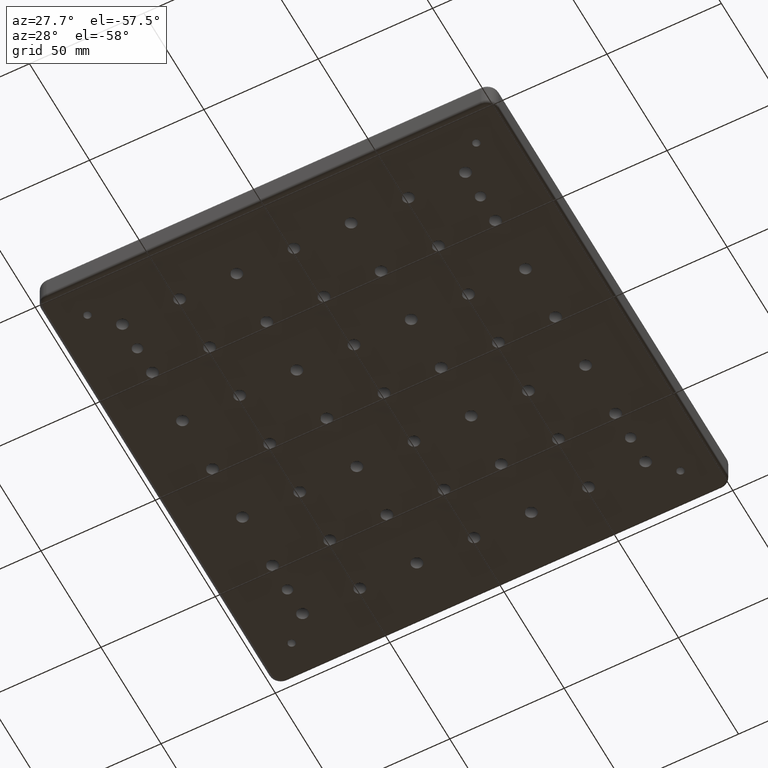
[diagram: clean part render]
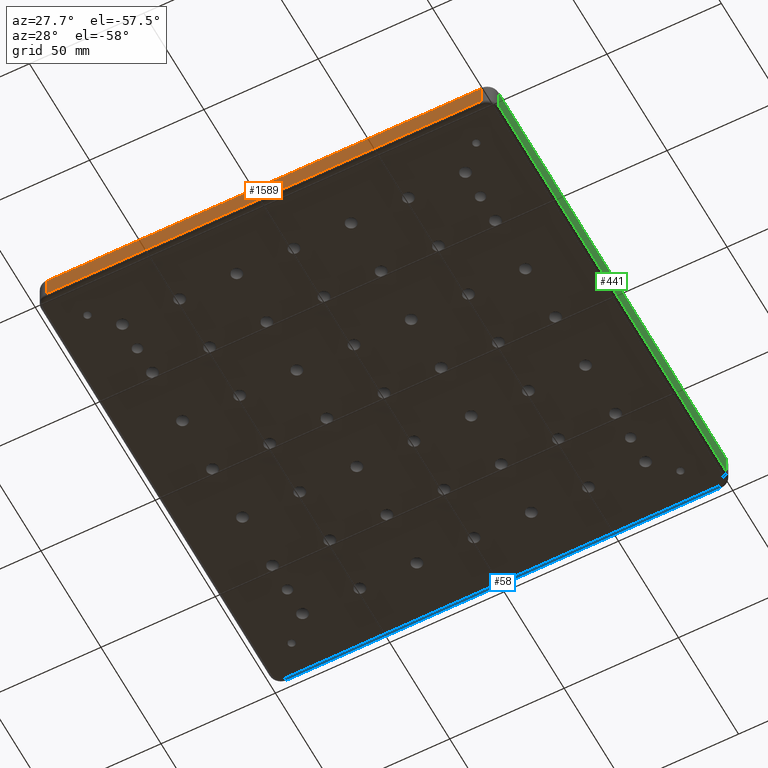
[diagram: same view with three faces highlighted in distinct colors, each labeled with its STEP entity id]
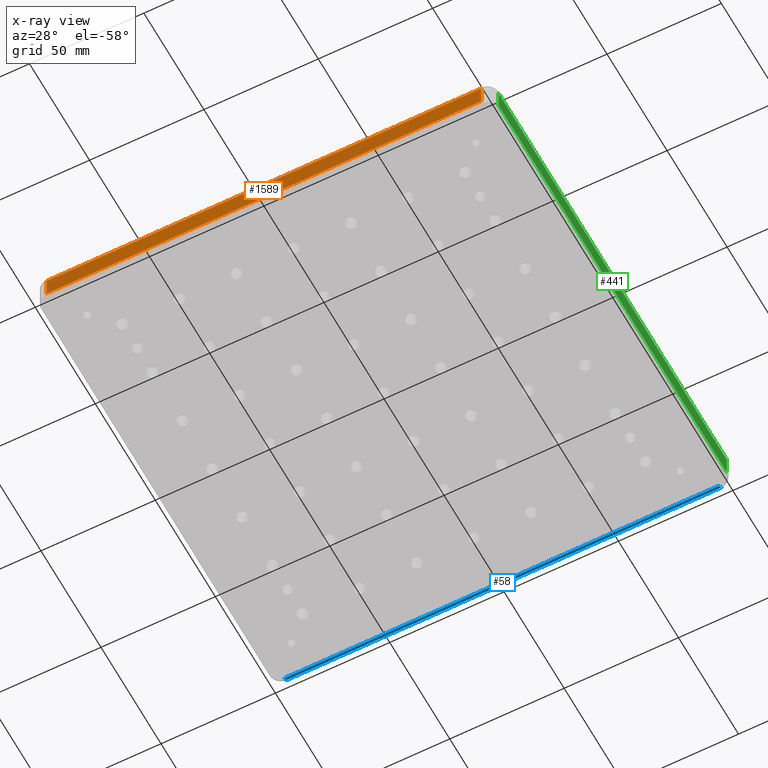
[diagram: x-ray of the same camera — body ghosted, the three highlighted faces saturated]
A machine part, auxiliary view with three faces highlighted in distinct colors.
The next image is the same camera in x-ray (body ghosted, the three faces saturated) — at least one of them is partly hidden behind the body in this view.
Their STEP definitions:

[orange] entity #1589 — the highlighted planar face has unit normal (-0, -1, 0).
#118 = AXIS2_PLACEMENT_3D ( 'NONE', #1741, #4043, #3664 ) ;
#560 = FACE_OUTER_BOUND ( 'NONE', #1085, .T. ) ;
#627 = CARTESIAN_POINT ( 'NONE',  ( -95.00000000000011400, -99.99999999999998600, -13.00000000000000000 ) ) ;
#709 = EDGE_CURVE ( 'NONE', #3378, #1156, #3849, .T. ) ;
#942 = DIRECTION ( 'NONE',  ( -1.000000000000000000, 1.460819769243625700E-016, -0.0000000000000000000 ) ) ;
#974 = CARTESIAN_POINT ( 'NONE',  ( -95.00000000000011400, -100.0000000000000000, -2.000000000000000000 ) ) ;
#1020 = VECTOR ( 'NONE', #2306, 1000.000000000000000 ) ;
#1085 = EDGE_LOOP ( 'NONE', ( #2422, #1783, #2228, #2787 ) ) ;
#1095 = EDGE_CURVE ( 'NONE', #4159, #2009, #1336, .T. ) ;
#1156 = VERTEX_POINT ( 'NONE', #3901 ) ;
#1221 = VECTOR ( 'NONE', #942, 1000.000000000000000 ) ;
#1336 = LINE ( 'NONE', #627, #1020 ) ;
#1369 = VECTOR ( 'NONE', #2543, 1000.000000000000000 ) ;
#1589 = ADVANCED_FACE ( 'NONE', ( #560 ), #4179, .T. ) ;
#1741 = CARTESIAN_POINT ( 'NONE',  ( -95.00000000000011400, -100.0000000000000000, -13.00000000000000000 ) ) ;
#1744 = CARTESIAN_POINT ( 'NONE',  ( -95.00000000000011400, -99.99999999999998600, -11.00000000000000000 ) ) ;
#1783 = ORIENTED_EDGE ( 'NONE', *, *, #2534, .T. ) ;
#2001 = VECTOR ( 'NONE', #5213, 1000.000000000000000 ) ;
#2009 = VERTEX_POINT ( 'NONE', #3250 ) ;
#2064 = CARTESIAN_POINT ( 'NONE',  ( -95.00000000000011400, -100.0000000000000000, -11.00000000000000000 ) ) ;
#2228 = ORIENTED_EDGE ( 'NONE', *, *, #709, .T. ) ;
#2306 = DIRECTION ( 'NONE',  ( 0.0000000000000000000, 0.0000000000000000000, 1.000000000000000000 ) ) ;
#2422 = ORIENTED_EDGE ( 'NONE', *, *, #1095, .F. ) ;
#2534 = EDGE_CURVE ( 'NONE', #4159, #3378, #3561, .T. ) ;
#2543 = DIRECTION ( 'NONE',  ( 1.000000000000000000, -1.460819769243625700E-016, 0.0000000000000000000 ) ) ;
#2787 = ORIENTED_EDGE ( 'NONE', *, *, #4674, .T. ) ;
#3250 = CARTESIAN_POINT ( 'NONE',  ( -95.00000000000011400, -99.99999999999998600, -2.000000000000001800 ) ) ;
#3269 = CARTESIAN_POINT ( 'NONE',  ( 95.00000000000011400, -100.0000000000000300, -11.00000000000000000 ) ) ;
#3378 = VERTEX_POINT ( 'NONE', #3269 ) ;
#3401 = LINE ( 'NONE', #974, #1221 ) ;
#3561 = LINE ( 'NONE', #2064, #1369 ) ;
#3664 = DIRECTION ( 'NONE',  ( 1.000000000000000000, -1.460819769243625700E-016, 0.0000000000000000000 ) ) ;
#3849 = LINE ( 'NONE', #4722, #2001 ) ;
#3901 = CARTESIAN_POINT ( 'NONE',  ( 95.00000000000011400, -100.0000000000000300, -2.000000000000003600 ) ) ;
#4043 = DIRECTION ( 'NONE',  ( -1.460819769243625700E-016, -1.000000000000000000, 0.0000000000000000000 ) ) ;
#4159 = VERTEX_POINT ( 'NONE', #1744 ) ;
#4179 = PLANE ( 'NONE',  #118 ) ;
#4674 = EDGE_CURVE ( 'NONE', #1156, #2009, #3401, .T. ) ;
#4722 = CARTESIAN_POINT ( 'NONE',  ( 95.00000000000011400, -100.0000000000000300, -13.00000000000000000 ) ) ;
#5213 = DIRECTION ( 'NONE',  ( 0.0000000000000000000, 0.0000000000000000000, 1.000000000000000000 ) ) ;

[blue] entity #58 — the highlighted cylindrical surface (edge-blend (fillet) strip) has radius 2 mm, axis along (-1, -0, 0).
#23 = AXIS2_PLACEMENT_3D ( 'NONE', #3622, #1941, #2014 ) ;
#58 = ADVANCED_FACE ( 'NONE', ( #3160 ), #2082, .T. ) ;
#523 = EDGE_CURVE ( 'NONE', #671, #995, #851, .T. ) ;
#671 = VERTEX_POINT ( 'NONE', #4684 ) ;
#766 = CARTESIAN_POINT ( 'NONE',  ( -95.00000000000011400, 100.0000000000000000, -11.00000000000000000 ) ) ;
#851 = CIRCLE ( 'NONE', #4746, 2.000000000000000000 ) ;
#875 = EDGE_LOOP ( 'NONE', ( #5304, #1277, #4281, #1580 ) ) ;
#995 = VERTEX_POINT ( 'NONE', #3763 ) ;
#1044 = CARTESIAN_POINT ( 'NONE',  ( 95.00000000000011400, 98.00000000000002800, -11.00000000000000000 ) ) ;
#1136 = CIRCLE ( 'NONE', #2550, 2.000000000000000000 ) ;
#1137 = CARTESIAN_POINT ( 'NONE',  ( -95.00000000000011400, 100.0000000000000000, -11.00000000000000000 ) ) ;
#1164 = LINE ( 'NONE', #766, #1943 ) ;
#1277 = ORIENTED_EDGE ( 'NONE', *, *, #3897, .F. ) ;
#1289 = DIRECTION ( 'NONE',  ( 1.000000000000000000, 1.460819769243625700E-016, -0.0000000000000000000 ) ) ;
#1453 = DIRECTION ( 'NONE',  ( 0.0000000000000000000, 0.0000000000000000000, -1.000000000000000000 ) ) ;
#1477 = EDGE_CURVE ( 'NONE', #3859, #3254, #1136, .T. ) ;
#1580 = ORIENTED_EDGE ( 'NONE', *, *, #3464, .F. ) ;
#1941 = DIRECTION ( 'NONE',  ( -1.000000000000000000, -1.460819769243625700E-016, 0.0000000000000000000 ) ) ;
#1943 = VECTOR ( 'NONE', #2061, 1000.000000000000000 ) ;
#2014 = DIRECTION ( 'NONE',  ( 0.0000000000000000000, -1.000000000000000000, 0.0000000000000000000 ) ) ;
#2061 = DIRECTION ( 'NONE',  ( -1.000000000000000000, -1.460819769243625700E-016, 0.0000000000000000000 ) ) ;
#2082 = CYLINDRICAL_SURFACE ( 'NONE', #23, 2.000000000000001800 ) ;
#2201 = LINE ( 'NONE', #2559, #2789 ) ;
#2329 = CARTESIAN_POINT ( 'NONE',  ( -95.00000000000011400, 98.00000000000000000, -13.00000000000000000 ) ) ;
#2550 = AXIS2_PLACEMENT_3D ( 'NONE', #5199, #4353, #3572 ) ;
#2559 = CARTESIAN_POINT ( 'NONE',  ( -95.00000000000011400, 98.00000000000000000, -13.00000000000000000 ) ) ;
#2789 = VECTOR ( 'NONE', #1289, 1000.000000000000000 ) ;
#3160 = FACE_OUTER_BOUND ( 'NONE', #875, .T. ) ;
#3254 = VERTEX_POINT ( 'NONE', #1137 ) ;
#3464 = EDGE_CURVE ( 'NONE', #3859, #671, #2201, .T. ) ;
#3572 = DIRECTION ( 'NONE',  ( 0.0000000000000000000, 0.0000000000000000000, -1.000000000000000000 ) ) ;
#3622 = CARTESIAN_POINT ( 'NONE',  ( -95.00000000000011400, 98.00000000000000000, -11.00000000000000000 ) ) ;
#3763 = CARTESIAN_POINT ( 'NONE',  ( 95.00000000000011400, 100.0000000000000100, -11.00000000000000000 ) ) ;
#3859 = VERTEX_POINT ( 'NONE', #2329 ) ;
#3897 = EDGE_CURVE ( 'NONE', #995, #3254, #1164, .T. ) ;
#3912 = DIRECTION ( 'NONE',  ( 1.000000000000000000, -0.0000000000000000000, 0.0000000000000000000 ) ) ;
#4281 = ORIENTED_EDGE ( 'NONE', *, *, #523, .F. ) ;
#4353 = DIRECTION ( 'NONE',  ( 1.000000000000000000, -0.0000000000000000000, 0.0000000000000000000 ) ) ;
#4684 = CARTESIAN_POINT ( 'NONE',  ( 95.00000000000011400, 98.00000000000002800, -13.00000000000000000 ) ) ;
#4746 = AXIS2_PLACEMENT_3D ( 'NONE', #1044, #3912, #1453 ) ;
#5199 = CARTESIAN_POINT ( 'NONE',  ( -95.00000000000011400, 97.99999999999998600, -11.00000000000000000 ) ) ;
#5304 = ORIENTED_EDGE ( 'NONE', *, *, #1477, .T. ) ;

[green] entity #441 — the highlighted planar face has unit normal (1, 0, -0).
#47 = CARTESIAN_POINT ( 'NONE',  ( 100.0000000000000700, -95.00000000000008500, -2.000000000000001800 ) ) ;
#149 = CARTESIAN_POINT ( 'NONE',  ( 99.99999999999997200, 95.00000000000014200, -11.00000000000000000 ) ) ;
#257 = DIRECTION ( 'NONE',  ( -2.921639538487251300E-016, 1.000000000000000000, 0.0000000000000000000 ) ) ;
#436 = LINE ( 'NONE', #4426, #4517 ) ;
#441 = ADVANCED_FACE ( 'NONE', ( #1037 ), #3159, .T. ) ;
#608 = DIRECTION ( 'NONE',  ( 0.0000000000000000000, 0.0000000000000000000, 1.000000000000000000 ) ) ;
#743 = CARTESIAN_POINT ( 'NONE',  ( 100.0000000000000300, -95.00000000000008500, -2.000000000000000000 ) ) ;
#937 = LINE ( 'NONE', #743, #1505 ) ;
#1037 = FACE_OUTER_BOUND ( 'NONE', #3261, .T. ) ;
#1072 = AXIS2_PLACEMENT_3D ( 'NONE', #2771, #4733, #257 ) ;
#1089 = VERTEX_POINT ( 'NONE', #149 ) ;
#1117 = VERTEX_POINT ( 'NONE', #4731 ) ;
#1505 = VECTOR ( 'NONE', #3601, 1000.000000000000000 ) ;
#1543 = EDGE_CURVE ( 'NONE', #1089, #4768, #436, .T. ) ;
#1928 = EDGE_CURVE ( 'NONE', #4768, #2555, #937, .T. ) ;
#1997 = DIRECTION ( 'NONE',  ( 0.0000000000000000000, 0.0000000000000000000, 1.000000000000000000 ) ) ;
#2121 = LINE ( 'NONE', #3350, #5191 ) ;
#2555 = VERTEX_POINT ( 'NONE', #47 ) ;
#2771 = CARTESIAN_POINT ( 'NONE',  ( 100.0000000000000300, -95.00000000000008500, -13.00000000000000000 ) ) ;
#3080 = LINE ( 'NONE', #3518, #5138 ) ;
#3159 = PLANE ( 'NONE',  #1072 ) ;
#3261 = EDGE_LOOP ( 'NONE', ( #4226, #4078, #3545, #3547 ) ) ;
#3331 = DIRECTION ( 'NONE',  ( -2.921639538487251300E-016, 1.000000000000000000, 0.0000000000000000000 ) ) ;
#3350 = CARTESIAN_POINT ( 'NONE',  ( 100.0000000000000300, -95.00000000000008500, -11.00000000000000000 ) ) ;
#3518 = CARTESIAN_POINT ( 'NONE',  ( 100.0000000000000700, -95.00000000000008500, -13.00000000000000000 ) ) ;
#3545 = ORIENTED_EDGE ( 'NONE', *, *, #1543, .T. ) ;
#3547 = ORIENTED_EDGE ( 'NONE', *, *, #1928, .T. ) ;
#3601 = DIRECTION ( 'NONE',  ( 2.921639538487251300E-016, -1.000000000000000000, -0.0000000000000000000 ) ) ;
#4078 = ORIENTED_EDGE ( 'NONE', *, *, #5151, .T. ) ;
#4226 = ORIENTED_EDGE ( 'NONE', *, *, #4783, .F. ) ;
#4426 = CARTESIAN_POINT ( 'NONE',  ( 99.99999999999997200, 95.00000000000014200, -13.00000000000000000 ) ) ;
#4517 = VECTOR ( 'NONE', #1997, 1000.000000000000000 ) ;
#4731 = CARTESIAN_POINT ( 'NONE',  ( 100.0000000000000700, -95.00000000000008500, -11.00000000000000000 ) ) ;
#4733 = DIRECTION ( 'NONE',  ( 1.000000000000000000, 2.921639538487251300E-016, -0.0000000000000000000 ) ) ;
#4749 = CARTESIAN_POINT ( 'NONE',  ( 99.99999999999997200, 95.00000000000014200, -2.000000000000003600 ) ) ;
#4768 = VERTEX_POINT ( 'NONE', #4749 ) ;
#4783 = EDGE_CURVE ( 'NONE', #1117, #2555, #3080, .T. ) ;
#5138 = VECTOR ( 'NONE', #608, 1000.000000000000000 ) ;
#5151 = EDGE_CURVE ( 'NONE', #1117, #1089, #2121, .T. ) ;
#5191 = VECTOR ( 'NONE', #3331, 1000.000000000000000 ) ;